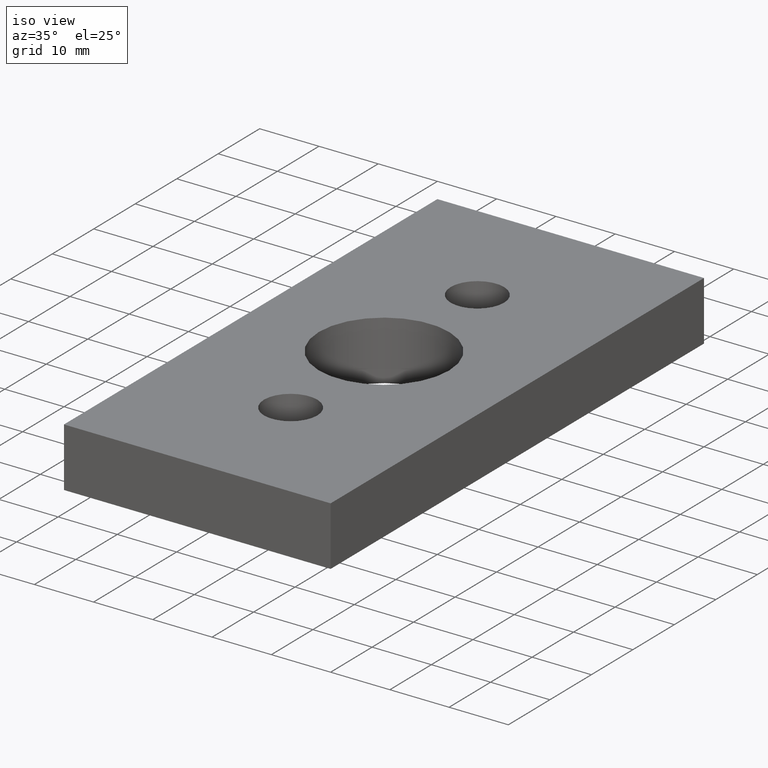
[diagram: clean part render]
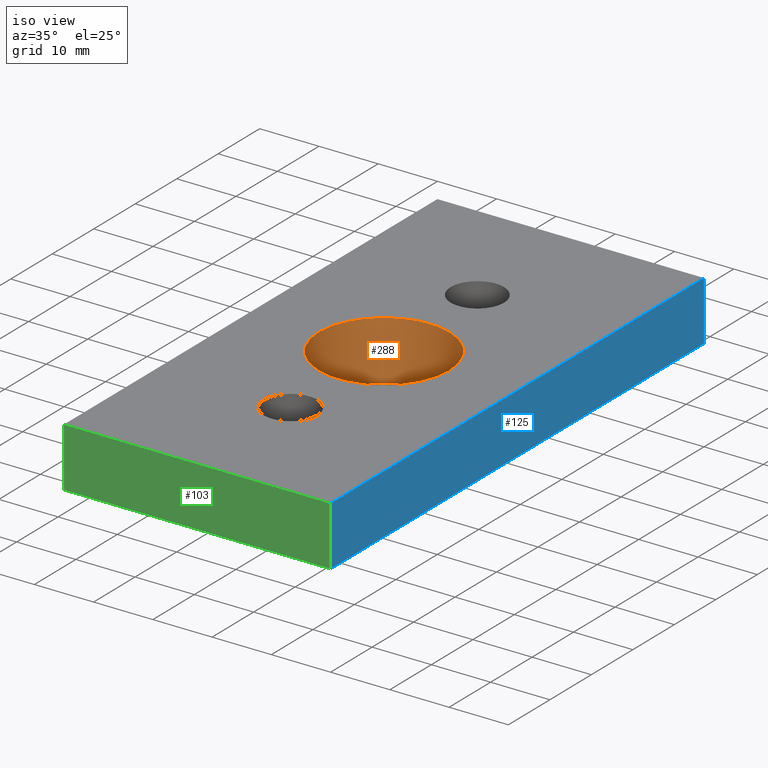
[diagram: same view with three faces highlighted in distinct colors, each labeled with its STEP entity id]
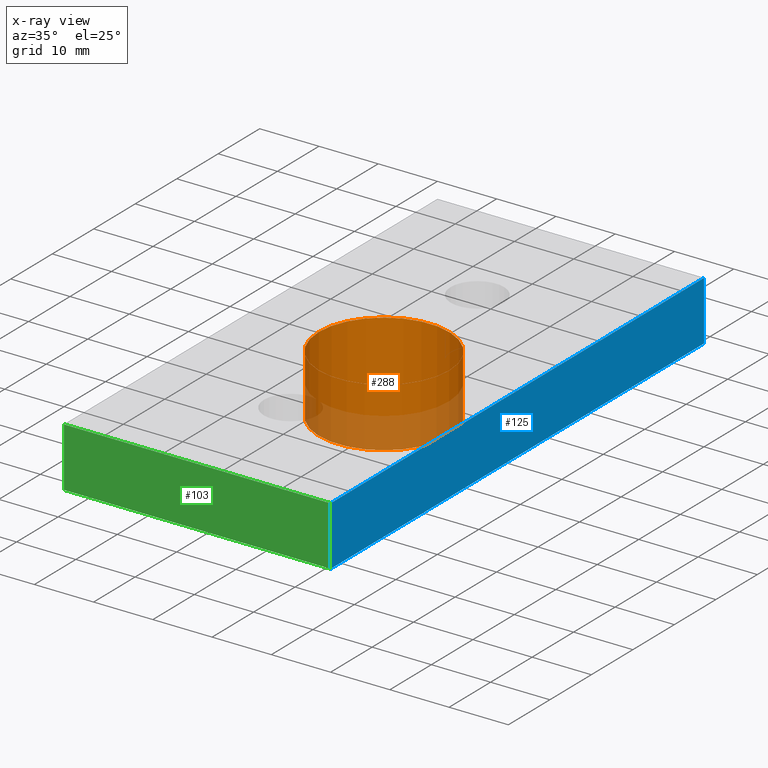
[diagram: x-ray of the same camera — body ghosted, the three highlighted faces saturated]
A machine part, iso view with three faces highlighted in distinct colors.
The next image is the same camera in x-ray (body ghosted, the three faces saturated) — at least one of them is partly hidden behind the body in this view.
Their STEP definitions:

[orange] entity #288 — the highlighted cylindrical surface (bore or boss wall) has radius 11 mm, axis along (0, 0, 1).
#137=CARTESIAN_POINT('',(-11.0,0.0,0.0));
#138=VERTEX_POINT('',#137);
#139=CARTESIAN_POINT('',(11.0,0.0,0.0));
#140=VERTEX_POINT('',#139);
#141=CARTESIAN_POINT('',(0.0,0.0,0.0));
#142=DIRECTION('',(0.0,0.0,-1.0));
#143=DIRECTION('',(1.0,0.0,0.0));
#144=AXIS2_PLACEMENT_3D('',#141,#142,#143);
#145=CIRCLE('',#144,11.0);
#146=EDGE_CURVE('',#138,#140,#145,.T.);
#148=CARTESIAN_POINT('',(0.0,0.0,0.0));
#149=DIRECTION('',(0.0,0.0,-1.0));
#150=DIRECTION('',(1.0,0.0,0.0));
#151=AXIS2_PLACEMENT_3D('',#148,#149,#150);
#152=CIRCLE('',#151,11.0);
#153=EDGE_CURVE('',#140,#138,#152,.T.);
#209=CARTESIAN_POINT('',(-11.0,0.0,10.0));
#210=VERTEX_POINT('',#209);
#211=CARTESIAN_POINT('',(11.0,0.0,10.0));
#212=VERTEX_POINT('',#211);
#213=CARTESIAN_POINT('',(0.0,0.0,10.0));
#214=DIRECTION('',(0.0,0.0,1.0));
#215=DIRECTION('',(1.0,0.0,0.0));
#216=AXIS2_PLACEMENT_3D('',#213,#214,#215);
#217=CIRCLE('',#216,11.0);
#218=EDGE_CURVE('',#210,#212,#217,.T.);
#220=CARTESIAN_POINT('',(0.0,0.0,10.0));
#221=DIRECTION('',(0.0,0.0,1.0));
#222=DIRECTION('',(1.0,0.0,0.0));
#223=AXIS2_PLACEMENT_3D('',#220,#221,#222);
#224=CIRCLE('',#223,11.0);
#225=EDGE_CURVE('',#212,#210,#224,.T.);
#270=CARTESIAN_POINT('',(0.0,0.0,10.0));
#271=DIRECTION('',(0.0,0.0,1.0));
#272=DIRECTION('',(1.0,0.0,0.0));
#273=AXIS2_PLACEMENT_3D('',#270,#271,#272);
#274=CYLINDRICAL_SURFACE('',#273,11.0);
#275=CARTESIAN_POINT('',(11.0,0.0,10.0));
#276=DIRECTION('',(0.0,0.0,-1.0));
#277=VECTOR('',#276,10.0);
#278=LINE('',#275,#277);
#279=EDGE_CURVE('',#212,#140,#278,.T.);
#280=ORIENTED_EDGE('',*,*,#279,.T.);
#281=ORIENTED_EDGE('',*,*,#153,.T.);
#282=ORIENTED_EDGE('',*,*,#146,.T.);
#283=ORIENTED_EDGE('',*,*,#279,.F.);
#284=ORIENTED_EDGE('',*,*,#225,.T.);
#285=ORIENTED_EDGE('',*,*,#218,.T.);
#286=EDGE_LOOP('',(#280,#281,#282,#283,#284,#285));
#287=FACE_OUTER_BOUND('',#286,.T.);
#288=ADVANCED_FACE('',(#287),#274,.F.);

[blue] entity #125 — the highlighted planar face has unit normal (1, 0, 0).
#7=CARTESIAN_POINT('',(22.500000000000007,45.0,0.0));
#8=VERTEX_POINT('',#7);
#25=CARTESIAN_POINT('',(22.500000000000007,45.0,10.0));
#26=VERTEX_POINT('',#25);
#33=CARTESIAN_POINT('',(22.500000000000007,45.0,0.0));
#34=DIRECTION('',(0.0,0.0,1.0));
#35=VECTOR('',#34,10.0);
#36=LINE('',#33,#35);
#37=EDGE_CURVE('',#8,#26,#36,.T.);
#78=CARTESIAN_POINT('',(22.499999999999993,-45.0,0.0));
#79=VERTEX_POINT('',#78);
#86=CARTESIAN_POINT('',(22.499999999999993,-45.0,10.0));
#87=VERTEX_POINT('',#86);
#88=CARTESIAN_POINT('',(22.499999999999993,-45.0,0.0));
#89=DIRECTION('',(0.0,0.0,1.0));
#90=VECTOR('',#89,10.0);
#91=LINE('',#88,#90);
#92=EDGE_CURVE('',#79,#87,#91,.T.);
#104=CARTESIAN_POINT('',(22.499999999999993,-45.0,0.0));
#105=DIRECTION('',(1.0,0.0,0.0));
#106=DIRECTION('',(0.0,1.0,0.0));
#107=AXIS2_PLACEMENT_3D('',#104,#105,#106);
#108=PLANE('',#107);
#109=CARTESIAN_POINT('',(22.499999999999993,-45.0,0.0));
#110=DIRECTION('',(0.0,1.0,0.0));
#111=VECTOR('',#110,90.0);
#112=LINE('',#109,#111);
#113=EDGE_CURVE('',#79,#8,#112,.T.);
#114=ORIENTED_EDGE('',*,*,#113,.T.);
#115=ORIENTED_EDGE('',*,*,#37,.T.);
#116=CARTESIAN_POINT('',(22.499999999999993,-45.0,10.0));
#117=DIRECTION('',(0.0,1.0,0.0));
#118=VECTOR('',#117,90.0);
#119=LINE('',#116,#118);
#120=EDGE_CURVE('',#87,#26,#119,.T.);
#121=ORIENTED_EDGE('',*,*,#120,.F.);
#122=ORIENTED_EDGE('',*,*,#92,.F.);
#123=EDGE_LOOP('',(#114,#115,#121,#122));
#124=FACE_OUTER_BOUND('',#123,.T.);
#125=ADVANCED_FACE('',(#124),#108,.T.);

[green] entity #103 — the highlighted planar face has unit normal (0, -1, 0).
#47=CARTESIAN_POINT('',(-22.499999999999993,-45.0,0.0));
#48=VERTEX_POINT('',#47);
#55=CARTESIAN_POINT('',(-22.499999999999993,-45.0,10.0));
#56=VERTEX_POINT('',#55);
#57=CARTESIAN_POINT('',(-22.499999999999993,-45.0,0.0));
#58=DIRECTION('',(0.0,0.0,1.0));
#59=VECTOR('',#58,10.0);
#60=LINE('',#57,#59);
#61=EDGE_CURVE('',#48,#56,#60,.T.);
#73=CARTESIAN_POINT('',(-22.499999999999993,-45.0,0.0));
#74=DIRECTION('',(0.0,-1.0,0.0));
#75=DIRECTION('',(1.0,0.0,0.0));
#76=AXIS2_PLACEMENT_3D('',#73,#74,#75);
#77=PLANE('',#76);
#78=CARTESIAN_POINT('',(22.499999999999993,-45.0,0.0));
#79=VERTEX_POINT('',#78);
#80=CARTESIAN_POINT('',(-22.499999999999993,-45.0,0.0));
#81=DIRECTION('',(1.0,0.0,0.0));
#82=VECTOR('',#81,44.999999999999986);
#83=LINE('',#80,#82);
#84=EDGE_CURVE('',#48,#79,#83,.T.);
#85=ORIENTED_EDGE('',*,*,#84,.T.);
#86=CARTESIAN_POINT('',(22.499999999999993,-45.0,10.0));
#87=VERTEX_POINT('',#86);
#88=CARTESIAN_POINT('',(22.499999999999993,-45.0,0.0));
#89=DIRECTION('',(0.0,0.0,1.0));
#90=VECTOR('',#89,10.0);
#91=LINE('',#88,#90);
#92=EDGE_CURVE('',#79,#87,#91,.T.);
#93=ORIENTED_EDGE('',*,*,#92,.T.);
#94=CARTESIAN_POINT('',(-22.499999999999993,-45.0,10.0));
#95=DIRECTION('',(1.0,0.0,0.0));
#96=VECTOR('',#95,44.999999999999986);
#97=LINE('',#94,#96);
#98=EDGE_CURVE('',#56,#87,#97,.T.);
#99=ORIENTED_EDGE('',*,*,#98,.F.);
#100=ORIENTED_EDGE('',*,*,#61,.F.);
#101=EDGE_LOOP('',(#85,#93,#99,#100));
#102=FACE_OUTER_BOUND('',#101,.T.);
#103=ADVANCED_FACE('',(#102),#77,.T.);